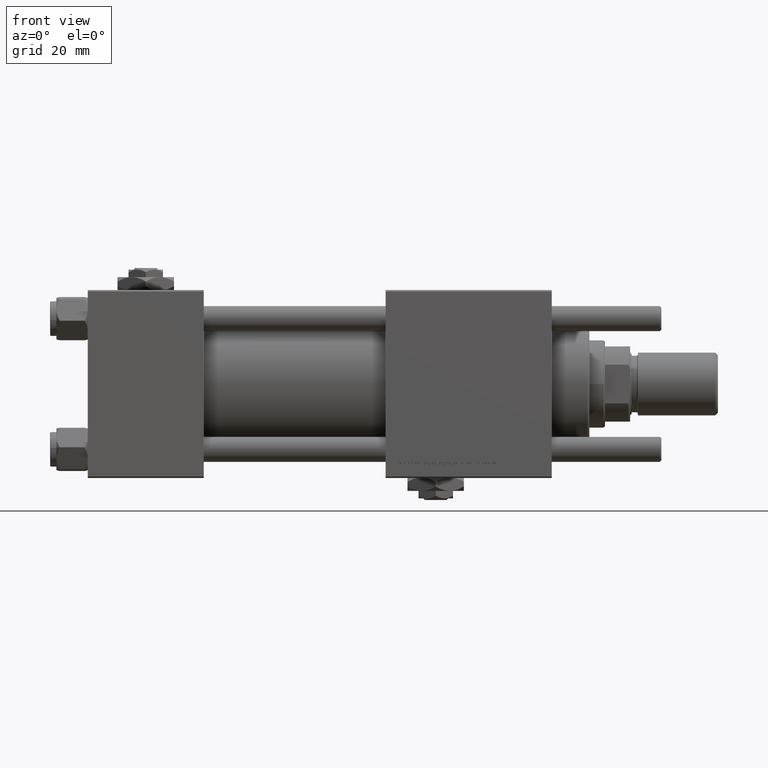
[diagram: clean part render]
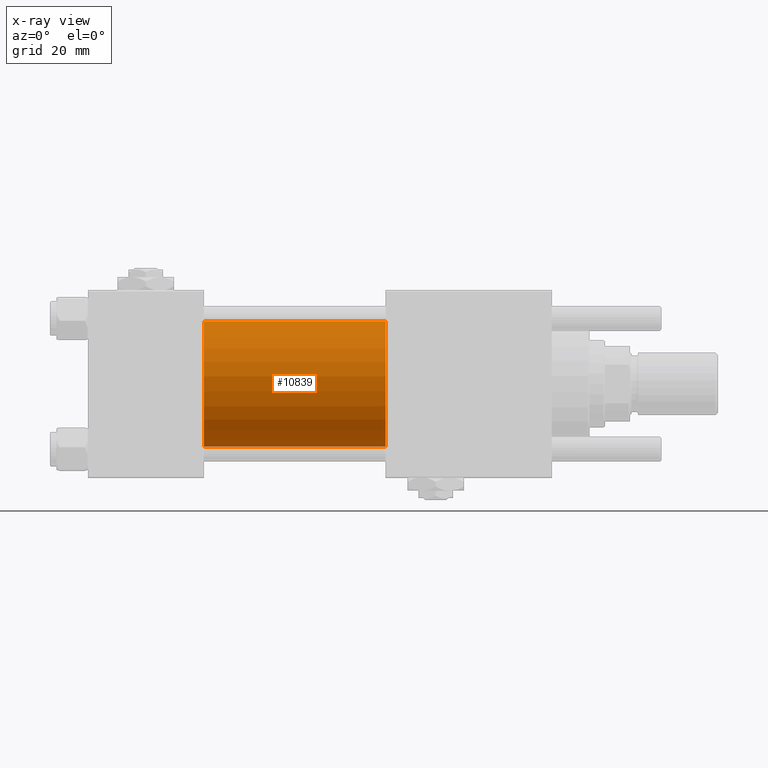
[diagram: x-ray — body ghosted, one internal face saturated and labeled with its STEP entity id]
A machine part, front view, then the same camera in x-ray: the body is ghosted and one INTERNAL B-rep face — a face not visible from any outside direction — is saturated and labeled: STEP entity #10839.
In plain terms, the highlighted cylindrical surface (partial cylindrical patch) has radius 20 mm, axis along (-1, -0, -0).
Its self-contained STEP definition (entity closure, byte-faithful):
#1801 = CARTESIAN_POINT ( 'NONE',  ( 37.00000000000000000, -1.527916156705046464E-16, -20.00000000000000000 ) ) ;
#1835 = DIRECTION ( 'NONE',  ( -1.000000000000000000, -0.000000000000000000, -0.000000000000000000 ) ) ;
#2801 = VERTEX_POINT ( 'NONE', #23842 ) ;
#4179 = VERTEX_POINT ( 'NONE', #5526 ) ;
#4283 = DIRECTION ( 'NONE',  ( 0.000000000000000000, 0.000000000000000000, -1.000000000000000000 ) ) ;
#5526 = CARTESIAN_POINT ( 'NONE',  ( 95.00000000000000000, -2.602085213965210642E-15, 20.00000000000000000 ) ) ;
#8644 = CYLINDRICAL_SURFACE ( 'NONE', #53548, 20.00000000000000000 ) ;
#10345 = EDGE_CURVE ( 'NONE', #2801, #44012, #33339, .T. ) ;
#10839 = ADVANCED_FACE ( 'NONE', ( #44480 ), #8644, .F. ) ;
#11247 = AXIS2_PLACEMENT_3D ( 'NONE', #36175, #27150, #4283 ) ;
#14172 = EDGE_CURVE ( 'NONE', #4179, #2801, #24689, .T. ) ;
#14409 = ORIENTED_EDGE ( 'NONE', *, *, #53086, .T. ) ;
#19778 = VERTEX_POINT ( 'NONE', #30992 ) ;
#21615 = DIRECTION ( 'NONE',  ( 0.000000000000000000, 0.000000000000000000, 1.000000000000000000 ) ) ;
#23842 = CARTESIAN_POINT ( 'NONE',  ( 37.00000000000000000, -2.602085213965210642E-15, 20.00000000000000000 ) ) ;
#24689 = LINE ( 'NONE', #56315, #48058 ) ;
#25863 = ORIENTED_EDGE ( 'NONE', *, *, #14172, .F. ) ;
#27150 = DIRECTION ( 'NONE',  ( 1.000000000000000000, 0.000000000000000000, 0.000000000000000000 ) ) ;
#29511 = EDGE_LOOP ( 'NONE', ( #14409, #38784, #50476, #25863 ) ) ;
#30992 = CARTESIAN_POINT ( 'NONE',  ( 95.00000000000000000, -1.527916156705046464E-16, -20.00000000000000000 ) ) ;
#31140 = CARTESIAN_POINT ( 'NONE',  ( 95.00000000000000000, -2.602085213965210642E-15, 0.000000000000000000 ) ) ;
#31238 = CIRCLE ( 'NONE', #59126, 20.00000000000000000 ) ;
#33339 = CIRCLE ( 'NONE', #11247, 20.00000000000000000 ) ;
#34879 = LINE ( 'NONE', #53267, #50523 ) ;
#36175 = CARTESIAN_POINT ( 'NONE',  ( 37.00000000000000000, -2.602085213965210642E-15, 0.000000000000000000 ) ) ;
#38784 = ORIENTED_EDGE ( 'NONE', *, *, #40468, .T. ) ;
#39971 = DIRECTION ( 'NONE',  ( -1.000000000000000000, -0.000000000000000000, -0.000000000000000000 ) ) ;
#40468 = EDGE_CURVE ( 'NONE', #19778, #44012, #34879, .T. ) ;
#44012 = VERTEX_POINT ( 'NONE', #1801 ) ;
#44480 = FACE_OUTER_BOUND ( 'NONE', #29511, .T. ) ;
#48058 = VECTOR ( 'NONE', #1835, 1000.000000000000000 ) ;
#49885 = CARTESIAN_POINT ( 'NONE',  ( 95.00000000000000000, -2.602085213965210642E-15, 0.000000000000000000 ) ) ;
#50476 = ORIENTED_EDGE ( 'NONE', *, *, #10345, .F. ) ;
#50523 = VECTOR ( 'NONE', #52380, 1000.000000000000000 ) ;
#52380 = DIRECTION ( 'NONE',  ( -1.000000000000000000, -0.000000000000000000, -0.000000000000000000 ) ) ;
#53086 = EDGE_CURVE ( 'NONE', #4179, #19778, #31238, .T. ) ;
#53267 = CARTESIAN_POINT ( 'NONE',  ( 95.00000000000000000, -1.527916156705046464E-16, -20.00000000000000000 ) ) ;
#53467 = DIRECTION ( 'NONE',  ( 1.000000000000000000, 0.000000000000000000, 0.000000000000000000 ) ) ;
#53548 = AXIS2_PLACEMENT_3D ( 'NONE', #49885, #39971, #21615 ) ;
#56315 = CARTESIAN_POINT ( 'NONE',  ( 95.00000000000000000, -2.602085213965210642E-15, 20.00000000000000000 ) ) ;
#57675 = DIRECTION ( 'NONE',  ( 0.000000000000000000, 0.000000000000000000, -1.000000000000000000 ) ) ;
#59126 = AXIS2_PLACEMENT_3D ( 'NONE', #31140, #53467, #57675 ) ;